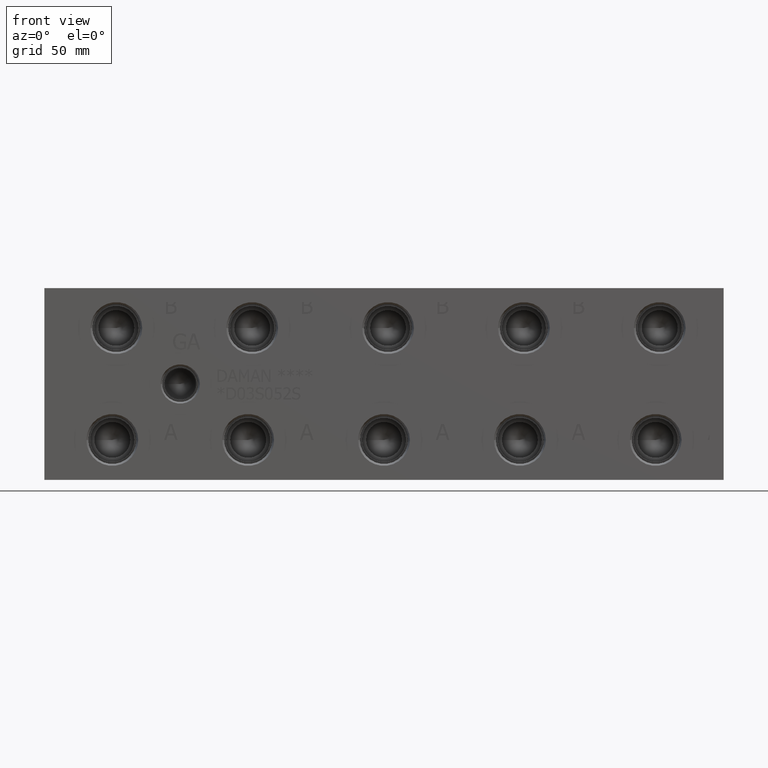
[diagram: clean part render]
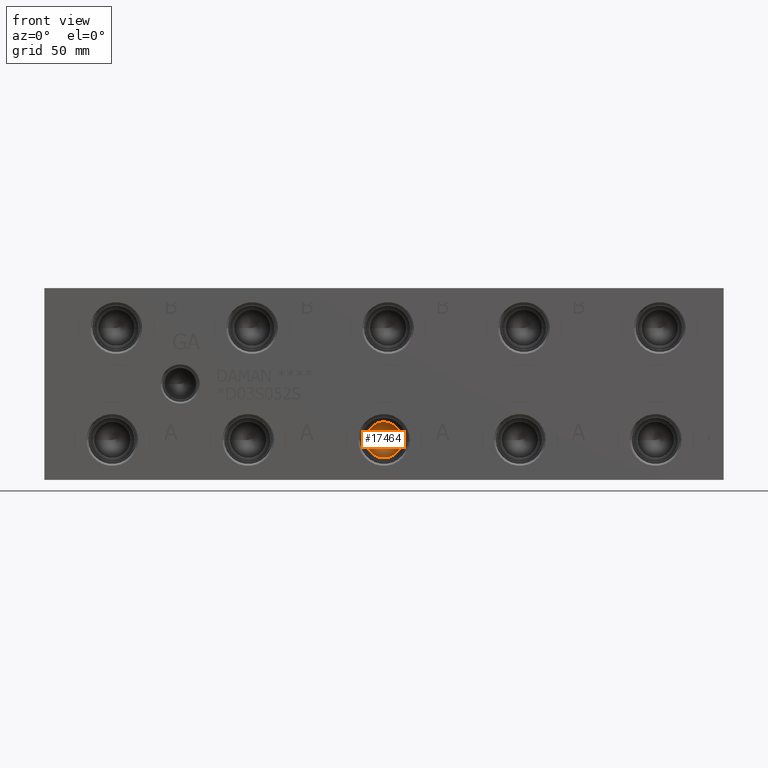
[diagram: same view with one face highlighted and labeled with its STEP entity id]
A machine part, front view. The second image highlights one B-rep face of the part: STEP entity #17464.
In plain terms, the highlighted conical surface has half-angle 60 deg.
Its self-contained STEP definition (entity closure, byte-faithful):
#34=CONICAL_SURFACE('',#18312,3.57505,1.0471975511966);
#399=CIRCLE('',#18313,7.1501);
#400=CIRCLE('',#18314,7.1501);
#2307=FACE_OUTER_BOUND('',#3319,.T.);
#3319=EDGE_LOOP('',(#14403,#14404,#14405,#14406));
#4943=LINE('',#29534,#6426);
#6426=VECTOR('',#21404,3.57505);
#7877=VERTEX_POINT('',#29530);
#7878=VERTEX_POINT('',#29531);
#7879=VERTEX_POINT('',#29533);
#10182=EDGE_CURVE('',#7877,#7878,#399,.T.);
#10183=EDGE_CURVE('',#7878,#7879,#4943,.T.);
#10184=EDGE_CURVE('',#7878,#7877,#400,.T.);
#14403=ORIENTED_EDGE('',*,*,#10182,.T.);
#14404=ORIENTED_EDGE('',*,*,#10183,.T.);
#14405=ORIENTED_EDGE('',*,*,#10183,.F.);
#14406=ORIENTED_EDGE('',*,*,#10184,.T.);
#17464=ADVANCED_FACE('',(#2307),#34,.F.);
#18312=AXIS2_PLACEMENT_3D('',#29529,#21400,#21401);
#18313=AXIS2_PLACEMENT_3D('',#29532,#21402,#21403);
#18314=AXIS2_PLACEMENT_3D('',#29535,#21405,#21406);
#21400=DIRECTION('center_axis',(0.,-1.,0.));
#21401=DIRECTION('ref_axis',(1.,0.,0.));
#21402=DIRECTION('center_axis',(0.,-1.,0.));
#21403=DIRECTION('ref_axis',(1.,0.,0.));
#21404=DIRECTION('',(0.866025403784439,0.5,1.06057523872491E-16));
#21405=DIRECTION('center_axis',(0.,-1.,0.));
#21406=DIRECTION('ref_axis',(1.,0.,0.));
#29529=CARTESIAN_POINT('Origin',(134.9248,25.1829360798664,15.875));
#29530=CARTESIAN_POINT('',(142.0749,23.11888,15.875));
#29531=CARTESIAN_POINT('',(127.7747,23.11888,15.875));
#29532=CARTESIAN_POINT('Origin',(134.9248,23.11888,15.875));
#29533=CARTESIAN_POINT('',(134.9248,27.2469921597327,15.875));
#29534=CARTESIAN_POINT('',(131.34975,25.1829360798664,15.875));
#29535=CARTESIAN_POINT('Origin',(134.9248,23.11888,15.875));